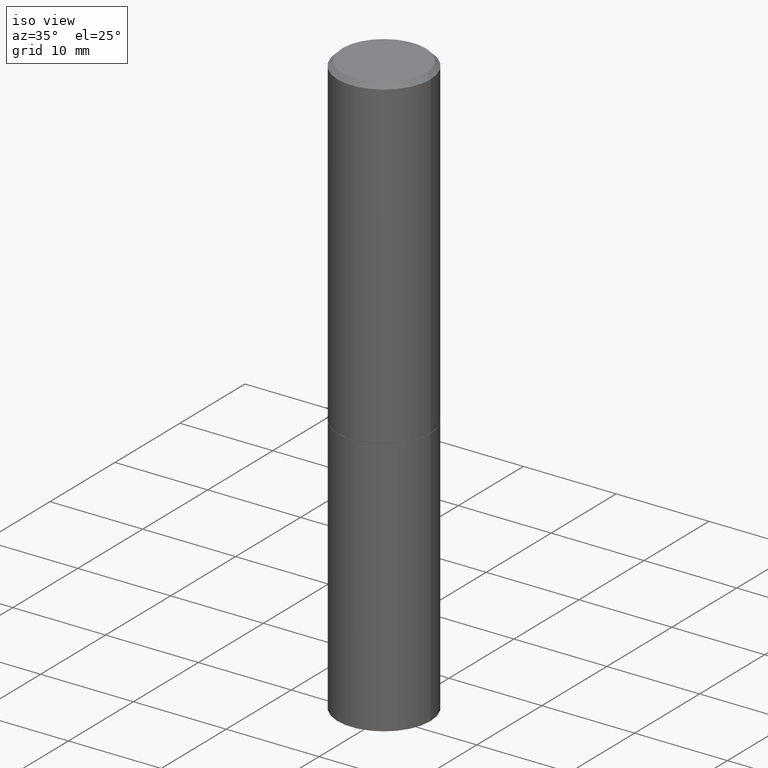
[diagram: clean part render]
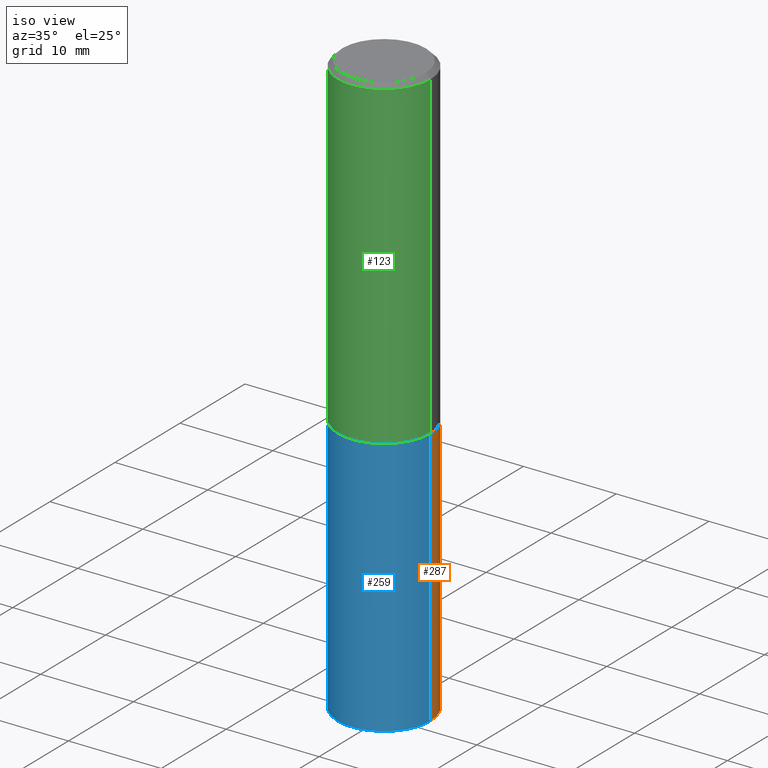
[diagram: same view with three faces highlighted in distinct colors, each labeled with its STEP entity id]
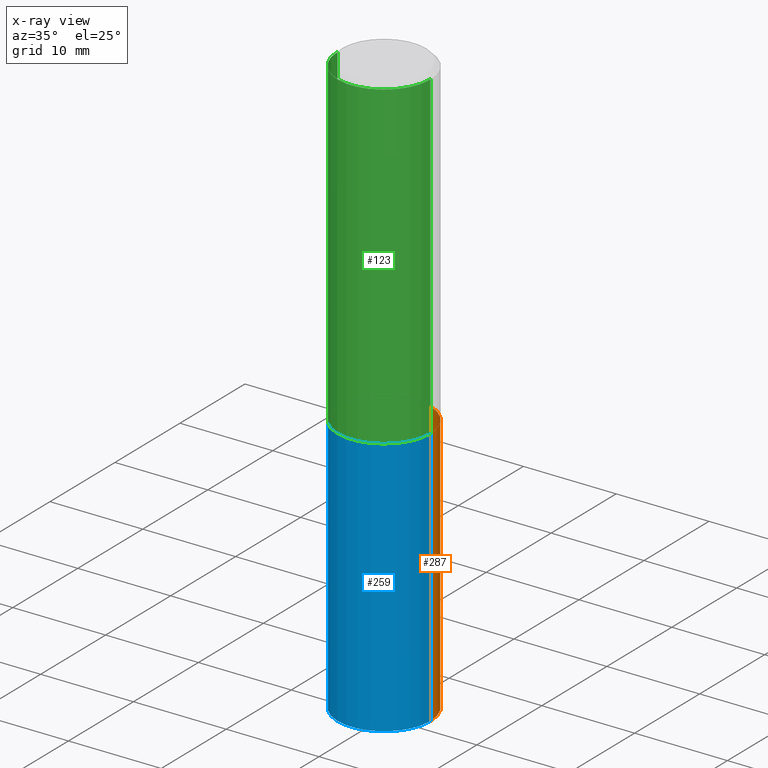
[diagram: x-ray of the same camera — body ghosted, the three highlighted faces saturated]
A machine part, iso view with three faces highlighted in distinct colors.
The next image is the same camera in x-ray (body ghosted, the three faces saturated) — at least one of them is partly hidden behind the body in this view.
Their STEP definitions:

[orange] entity #287 — the highlighted cylindrical surface (partial cylindrical patch) has radius 5 mm, axis along (-0, 0, 1).
#3 = CYLINDRICAL_SURFACE ( 'NONE', #239, 0.1968500000000000250 ) ;
#11 = CARTESIAN_POINT ( 'NONE',  ( 3.369611468042499724E-29, -4.810912136791970439E-15, -1.377900000000000125 ) ) ;
#16 = CARTESIAN_POINT ( 'NONE',  ( -0.1968500000000000250, -5.336713275418556283E-15, -2.480300000000000171 ) ) ;
#33 = LINE ( 'NONE', #172, #147 ) ;
#35 = CARTESIAN_POINT ( 'NONE',  ( 0.1968500000000000250, -6.185508339894512836E-15, -1.377900000000000125 ) ) ;
#62 = AXIS2_PLACEMENT_3D ( 'NONE', #11, #216, #186 ) ;
#68 = VERTEX_POINT ( 'NONE', #162 ) ;
#80 = AXIS2_PLACEMENT_3D ( 'NONE', #142, #114, #231 ) ;
#83 = DIRECTION ( 'NONE',  ( -2.445468806185136877E-29, 3.491481338843145188E-15, 1.000000000000000000 ) ) ;
#96 = VECTOR ( 'NONE', #233, 39.37007874015748143 ) ;
#114 = DIRECTION ( 'NONE',  ( -2.445468806185136597E-29, 3.491481338843145583E-15, 1.000000000000000000 ) ) ;
#132 = EDGE_LOOP ( 'NONE', ( #237, #242, #217, #304 ) ) ;
#139 = CARTESIAN_POINT ( 'NONE',  ( -0.1968500000000000250, -5.336713275418556283E-15, -1.377900000000000125 ) ) ;
#142 = CARTESIAN_POINT ( 'NONE',  ( 6.065496279980994755E-29, -8.659921164732655335E-15, -2.480300000000000171 ) ) ;
#147 = VECTOR ( 'NONE', #83, 39.37007874015748143 ) ;
#154 = VERTEX_POINT ( 'NONE', #16 ) ;
#157 = EDGE_CURVE ( 'NONE', #68, #159, #187, .T. ) ;
#159 = VERTEX_POINT ( 'NONE', #35 ) ;
#162 = CARTESIAN_POINT ( 'NONE',  ( 0.1968500000000000250, -1.003451736783519694E-14, -2.480300000000000171 ) ) ;
#163 = DIRECTION ( 'NONE',  ( -2.445468806185136597E-29, 3.491481338843145583E-15, 1.000000000000000000 ) ) ;
#172 = CARTESIAN_POINT ( 'NONE',  ( -0.1968500000000000250, 1.398703375343757393E-15, -9.682923725166783677E-30 ) ) ;
#186 = DIRECTION ( 'NONE',  ( 1.000000000000000000, -6.982962677686267499E-15, 0.000000000000000000 ) ) ;
#187 = LINE ( 'NONE', #303, #96 ) ;
#194 = CARTESIAN_POINT ( 'NONE',  ( 0.000000000000000000, 0.000000000000000000, 0.000000000000000000 ) ) ;
#216 = DIRECTION ( 'NONE',  ( -2.445468806185136597E-29, 3.491481338843145583E-15, 1.000000000000000000 ) ) ;
#217 = ORIENTED_EDGE ( 'NONE', *, *, #234, .F. ) ;
#231 = DIRECTION ( 'NONE',  ( 1.000000000000000000, -6.982962677686267499E-15, 0.000000000000000000 ) ) ;
#233 = DIRECTION ( 'NONE',  ( -2.445468806185136877E-29, 3.491481338843145188E-15, 1.000000000000000000 ) ) ;
#234 = EDGE_CURVE ( 'NONE', #159, #277, #345, .T. ) ;
#237 = ORIENTED_EDGE ( 'NONE', *, *, #356, .T. ) ;
#239 = AXIS2_PLACEMENT_3D ( 'NONE', #194, #163, #265 ) ;
#242 = ORIENTED_EDGE ( 'NONE', *, *, #253, .T. ) ;
#253 = EDGE_CURVE ( 'NONE', #154, #277, #33, .T. ) ;
#260 = FACE_OUTER_BOUND ( 'NONE', #132, .T. ) ;
#265 = DIRECTION ( 'NONE',  ( 1.000000000000000000, -6.982962677686265922E-15, 4.876176775795935793E-29 ) ) ;
#277 = VERTEX_POINT ( 'NONE', #139 ) ;
#287 = ADVANCED_FACE ( 'NONE', ( #260 ), #3, .T. ) ;
#303 = CARTESIAN_POINT ( 'NONE',  ( 0.1968500000000000250, -1.374596203102541608E-15, 9.598753983154300858E-30 ) ) ;
#304 = ORIENTED_EDGE ( 'NONE', *, *, #157, .F. ) ;
#341 = CIRCLE ( 'NONE', #80, 0.1968500000000000250 ) ;
#345 = CIRCLE ( 'NONE', #62, 0.1968500000000000250 ) ;
#356 = EDGE_CURVE ( 'NONE', #68, #154, #341, .T. ) ;

[blue] entity #259 — the highlighted cylindrical surface (partial cylindrical patch) has radius 5 mm, axis along (-0, 0, 1).
#10 = AXIS2_PLACEMENT_3D ( 'NONE', #164, #58, #174 ) ;
#16 = CARTESIAN_POINT ( 'NONE',  ( -0.1968500000000000250, -5.336713275418556283E-15, -2.480300000000000171 ) ) ;
#25 = CARTESIAN_POINT ( 'NONE',  ( 3.369611468042499724E-29, -4.810912136791970439E-15, -1.377900000000000125 ) ) ;
#33 = LINE ( 'NONE', #172, #147 ) ;
#35 = CARTESIAN_POINT ( 'NONE',  ( 0.1968500000000000250, -6.185508339894512836E-15, -1.377900000000000125 ) ) ;
#58 = DIRECTION ( 'NONE',  ( -2.445468806185136597E-29, 3.491481338843145583E-15, 1.000000000000000000 ) ) ;
#68 = VERTEX_POINT ( 'NONE', #162 ) ;
#83 = DIRECTION ( 'NONE',  ( -2.445468806185136877E-29, 3.491481338843145188E-15, 1.000000000000000000 ) ) ;
#95 = CIRCLE ( 'NONE', #271, 0.1968500000000000250 ) ;
#96 = VECTOR ( 'NONE', #233, 39.37007874015748143 ) ;
#104 = DIRECTION ( 'NONE',  ( -2.445468806185136597E-29, 3.491481338843145583E-15, 1.000000000000000000 ) ) ;
#129 = EDGE_CURVE ( 'NONE', #277, #159, #95, .T. ) ;
#131 = ORIENTED_EDGE ( 'NONE', *, *, #129, .F. ) ;
#139 = CARTESIAN_POINT ( 'NONE',  ( -0.1968500000000000250, -5.336713275418556283E-15, -1.377900000000000125 ) ) ;
#147 = VECTOR ( 'NONE', #83, 39.37007874015748143 ) ;
#154 = VERTEX_POINT ( 'NONE', #16 ) ;
#157 = EDGE_CURVE ( 'NONE', #68, #159, #187, .T. ) ;
#159 = VERTEX_POINT ( 'NONE', #35 ) ;
#162 = CARTESIAN_POINT ( 'NONE',  ( 0.1968500000000000250, -1.003451736783519694E-14, -2.480300000000000171 ) ) ;
#164 = CARTESIAN_POINT ( 'NONE',  ( 6.065496279980994755E-29, -8.659921164732655335E-15, -2.480300000000000171 ) ) ;
#166 = CYLINDRICAL_SURFACE ( 'NONE', #319, 0.1968500000000000250 ) ;
#172 = CARTESIAN_POINT ( 'NONE',  ( -0.1968500000000000250, 1.398703375343757393E-15, -9.682923725166783677E-30 ) ) ;
#174 = DIRECTION ( 'NONE',  ( 1.000000000000000000, -6.982962677686267499E-15, 0.000000000000000000 ) ) ;
#184 = EDGE_LOOP ( 'NONE', ( #358, #306, #328, #131 ) ) ;
#187 = LINE ( 'NONE', #303, #96 ) ;
#201 = DIRECTION ( 'NONE',  ( -2.445468806185136597E-29, 3.491481338843145583E-15, 1.000000000000000000 ) ) ;
#224 = DIRECTION ( 'NONE',  ( 1.000000000000000000, -6.982962677686267499E-15, 0.000000000000000000 ) ) ;
#227 = FACE_OUTER_BOUND ( 'NONE', #184, .T. ) ;
#229 = EDGE_CURVE ( 'NONE', #154, #68, #299, .T. ) ;
#233 = DIRECTION ( 'NONE',  ( -2.445468806185136877E-29, 3.491481338843145188E-15, 1.000000000000000000 ) ) ;
#253 = EDGE_CURVE ( 'NONE', #154, #277, #33, .T. ) ;
#258 = CARTESIAN_POINT ( 'NONE',  ( 0.000000000000000000, 0.000000000000000000, 0.000000000000000000 ) ) ;
#259 = ADVANCED_FACE ( 'NONE', ( #227 ), #166, .T. ) ;
#262 = DIRECTION ( 'NONE',  ( 1.000000000000000000, -6.982962677686265922E-15, 4.876176775795935793E-29 ) ) ;
#271 = AXIS2_PLACEMENT_3D ( 'NONE', #25, #104, #224 ) ;
#277 = VERTEX_POINT ( 'NONE', #139 ) ;
#299 = CIRCLE ( 'NONE', #10, 0.1968500000000000250 ) ;
#303 = CARTESIAN_POINT ( 'NONE',  ( 0.1968500000000000250, -1.374596203102541608E-15, 9.598753983154300858E-30 ) ) ;
#306 = ORIENTED_EDGE ( 'NONE', *, *, #229, .T. ) ;
#319 = AXIS2_PLACEMENT_3D ( 'NONE', #258, #201, #262 ) ;
#328 = ORIENTED_EDGE ( 'NONE', *, *, #157, .T. ) ;
#358 = ORIENTED_EDGE ( 'NONE', *, *, #253, .F. ) ;

[green] entity #123 — the highlighted cylindrical surface (partial cylindrical patch) has radius 5 mm, axis along (-0, 0, 1).
#4 = CARTESIAN_POINT ( 'NONE',  ( 0.000000000000000000, 0.000000000000000000, 0.000000000000000000 ) ) ;
#14 = VERTEX_POINT ( 'NONE', #44 ) ;
#17 = EDGE_CURVE ( 'NONE', #14, #152, #156, .T. ) ;
#42 = EDGE_LOOP ( 'NONE', ( #252, #94, #354, #331 ) ) ;
#44 = CARTESIAN_POINT ( 'NONE',  ( 0.1968499999999999417, -6.182016858555667463E-15, -1.376900000000000013 ) ) ;
#52 = DIRECTION ( 'NONE',  ( 1.000000000000000000, -6.982962677686266711E-15, 4.876176775795935793E-29 ) ) ;
#53 = CARTESIAN_POINT ( 'NONE',  ( -0.1968499999999998307, 1.398703375343756013E-15, -9.682923725166775270E-30 ) ) ;
#67 = CIRCLE ( 'NONE', #344, 0.1968499999999999417 ) ;
#70 = EDGE_CURVE ( 'NONE', #283, #270, #195, .T. ) ;
#86 = VECTOR ( 'NONE', #191, 39.37007874015748143 ) ;
#94 = ORIENTED_EDGE ( 'NONE', *, *, #107, .T. ) ;
#99 = CARTESIAN_POINT ( 'NONE',  ( 0.1968499999999997752, -1.420318657638187544E-15, -0.02000000000000004205 ) ) ;
#107 = EDGE_CURVE ( 'NONE', #283, #14, #67, .T. ) ;
#110 = CARTESIAN_POINT ( 'NONE',  ( 0.1968499999999998307, -1.374596203102540425E-15, 9.598753983154291049E-30 ) ) ;
#123 = ADVANCED_FACE ( 'NONE', ( #310 ), #261, .T. ) ;
#140 = DIRECTION ( 'NONE',  ( -2.445468806185136597E-29, 3.491481338843145583E-15, 1.000000000000000000 ) ) ;
#152 = VERTEX_POINT ( 'NONE', #99 ) ;
#156 = LINE ( 'NONE', #110, #86 ) ;
#191 = DIRECTION ( 'NONE',  ( -2.445468806185136877E-29, 3.491481338843145188E-15, 1.000000000000000000 ) ) ;
#195 = LINE ( 'NONE', #53, #238 ) ;
#196 = CARTESIAN_POINT ( 'NONE',  ( -0.1968499999999997752, 1.304766576325676930E-15, -0.02000000000000004205 ) ) ;
#203 = DIRECTION ( 'NONE',  ( 1.000000000000000000, -6.982962677686266711E-15, 0.000000000000000000 ) ) ;
#238 = VECTOR ( 'NONE', #360, 39.37007874015748143 ) ;
#248 = AXIS2_PLACEMENT_3D ( 'NONE', #4, #308, #52 ) ;
#252 = ORIENTED_EDGE ( 'NONE', *, *, #70, .F. ) ;
#261 = CYLINDRICAL_SURFACE ( 'NONE', #248, 0.1968499999999998307 ) ;
#264 = AXIS2_PLACEMENT_3D ( 'NONE', #311, #293, #203 ) ;
#270 = VERTEX_POINT ( 'NONE', #196 ) ;
#273 = EDGE_CURVE ( 'NONE', #270, #152, #294, .T. ) ;
#283 = VERTEX_POINT ( 'NONE', #337 ) ;
#293 = DIRECTION ( 'NONE',  ( -2.445468806185136597E-29, 3.491481338843145583E-15, 1.000000000000000000 ) ) ;
#294 = CIRCLE ( 'NONE', #264, 0.1968499999999997752 ) ;
#308 = DIRECTION ( 'NONE',  ( -2.445468806185136597E-29, 3.491481338843145583E-15, 1.000000000000000000 ) ) ;
#309 = CARTESIAN_POINT ( 'NONE',  ( 3.367165999236314681E-29, -4.807420655453126643E-15, -1.376900000000000013 ) ) ;
#310 = FACE_OUTER_BOUND ( 'NONE', #42, .T. ) ;
#311 = CARTESIAN_POINT ( 'NONE',  ( 4.890937612370283668E-31, -6.982962677686305168E-17, -0.02000000000000004205 ) ) ;
#331 = ORIENTED_EDGE ( 'NONE', *, *, #273, .F. ) ;
#337 = CARTESIAN_POINT ( 'NONE',  ( -0.1968499999999999417, -1.039921765771237577E-15, -1.376900000000000013 ) ) ;
#344 = AXIS2_PLACEMENT_3D ( 'NONE', #309, #140, #365 ) ;
#354 = ORIENTED_EDGE ( 'NONE', *, *, #17, .T. ) ;
#360 = DIRECTION ( 'NONE',  ( -2.445468806185136877E-29, 3.491481338843145188E-15, 1.000000000000000000 ) ) ;
#365 = DIRECTION ( 'NONE',  ( 1.000000000000000000, -6.982962677686265922E-15, 0.000000000000000000 ) ) ;